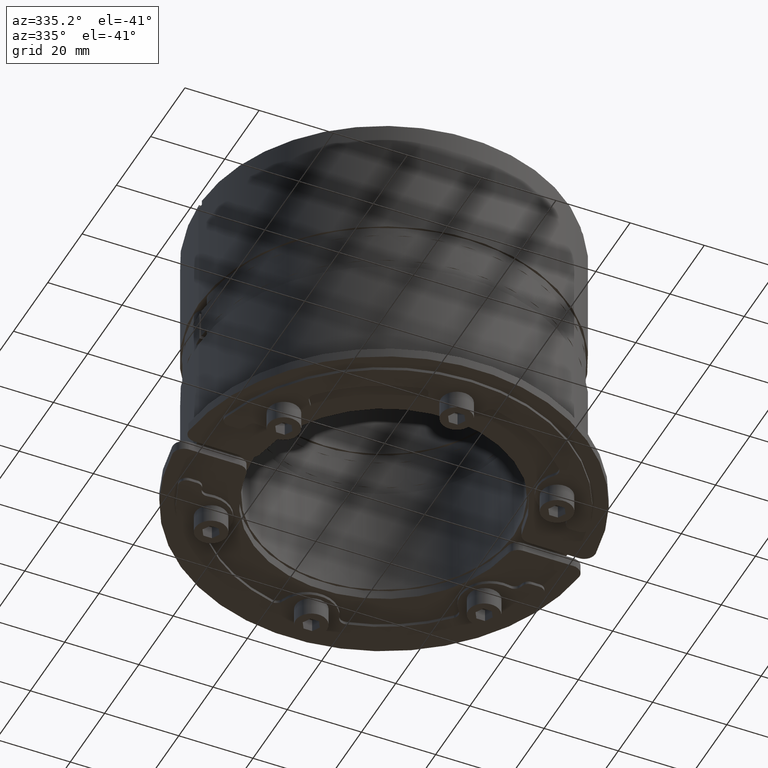
[diagram: clean part render]
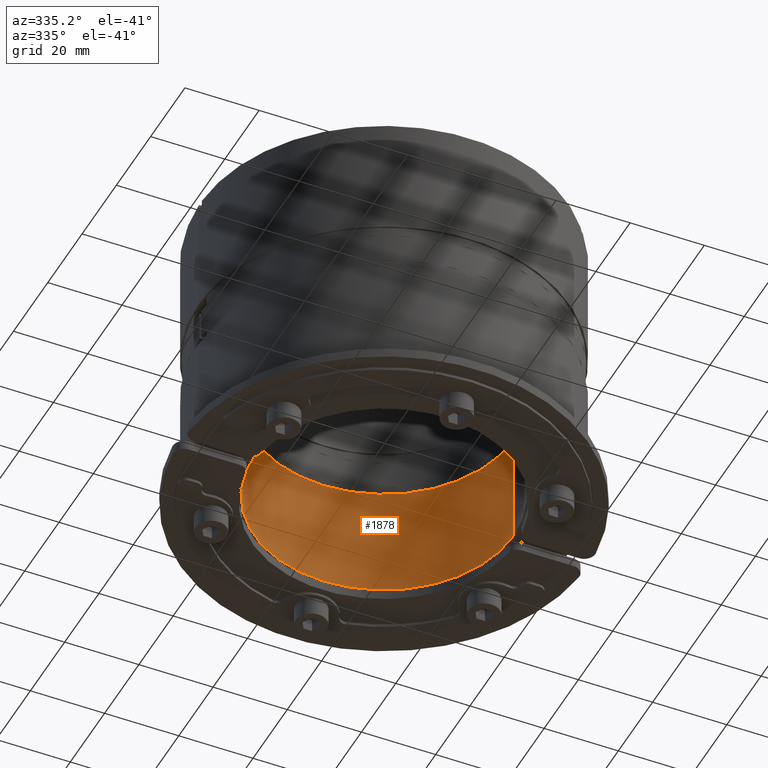
[diagram: same view with one face highlighted and labeled with its STEP entity id]
A machine part, auxiliary view. The second image highlights one B-rep face of the part: STEP entity #1878.
In plain terms, the highlighted cylindrical surface (partial cylindrical patch) has radius 35 mm, axis along (-0, 0, -1).
Its self-contained STEP definition (entity closure, byte-faithful):
#1837=CARTESIAN_POINT('',(0.0,-25.250000000000028,-15.0));
#1838=DIRECTION('',(0.0,0.0,1.0));
#1839=DIRECTION('',(1.0,0.0,0.0));
#1840=AXIS2_PLACEMENT_3D('',#1837,#1838,#1839);
#1841=CYLINDRICAL_SURFACE('',#1840,35.0);
#1842=CARTESIAN_POINT('',(35.0,-25.250000000000000,16.0));
#1843=VERTEX_POINT('',#1842);
#1844=CARTESIAN_POINT('',(-35.0,-25.250000000000000,16.0));
#1845=VERTEX_POINT('',#1844);
#1846=CARTESIAN_POINT('',(0.0,-25.250000000000028,16.0));
#1847=DIRECTION('',(0.0,0.0,1.0));
#1848=DIRECTION('',(1.0,0.0,0.0));
#1849=AXIS2_PLACEMENT_3D('',#1846,#1847,#1848);
#1850=CIRCLE('',#1849,35.0);
#1851=EDGE_CURVE('',#1843,#1845,#1850,.T.);
#1852=ORIENTED_EDGE('',*,*,#1851,.T.);
#1853=CARTESIAN_POINT('',(-35.0,-25.250000000000000,-15.0));
#1854=VERTEX_POINT('',#1853);
#1855=CARTESIAN_POINT('',(-35.0,-25.250000000000000,-15.0));
#1856=DIRECTION('',(0.0,0.0,1.0));
#1857=VECTOR('',#1856,31.0);
#1858=LINE('',#1855,#1857);
#1859=EDGE_CURVE('',#1854,#1845,#1858,.T.);
#1860=ORIENTED_EDGE('',*,*,#1859,.F.);
#1861=CARTESIAN_POINT('',(35.0,-25.250000000000000,-15.0));
#1862=VERTEX_POINT('',#1861);
#1863=CARTESIAN_POINT('',(0.0,-25.250000000000028,-15.0));
#1864=DIRECTION('',(0.0,0.0,-1.0));
#1865=DIRECTION('',(1.0,0.0,0.0));
#1866=AXIS2_PLACEMENT_3D('',#1863,#1864,#1865);
#1867=CIRCLE('',#1866,35.0);
#1868=EDGE_CURVE('',#1854,#1862,#1867,.T.);
#1869=ORIENTED_EDGE('',*,*,#1868,.T.);
#1870=CARTESIAN_POINT('',(35.0,-25.250000000000000,-15.0));
#1871=DIRECTION('',(0.0,0.0,1.0));
#1872=VECTOR('',#1871,31.0);
#1873=LINE('',#1870,#1872);
#1874=EDGE_CURVE('',#1862,#1843,#1873,.T.);
#1875=ORIENTED_EDGE('',*,*,#1874,.T.);
#1876=EDGE_LOOP('',(#1852,#1860,#1869,#1875));
#1877=FACE_OUTER_BOUND('',#1876,.T.);
#1878=ADVANCED_FACE('',(#1877),#1841,.F.);